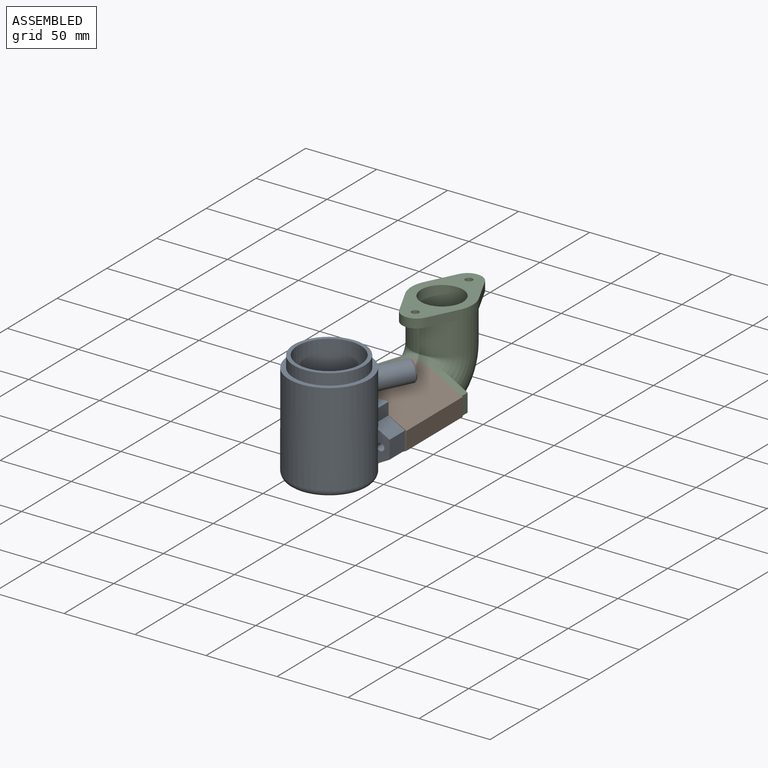
[diagram: assembled view]
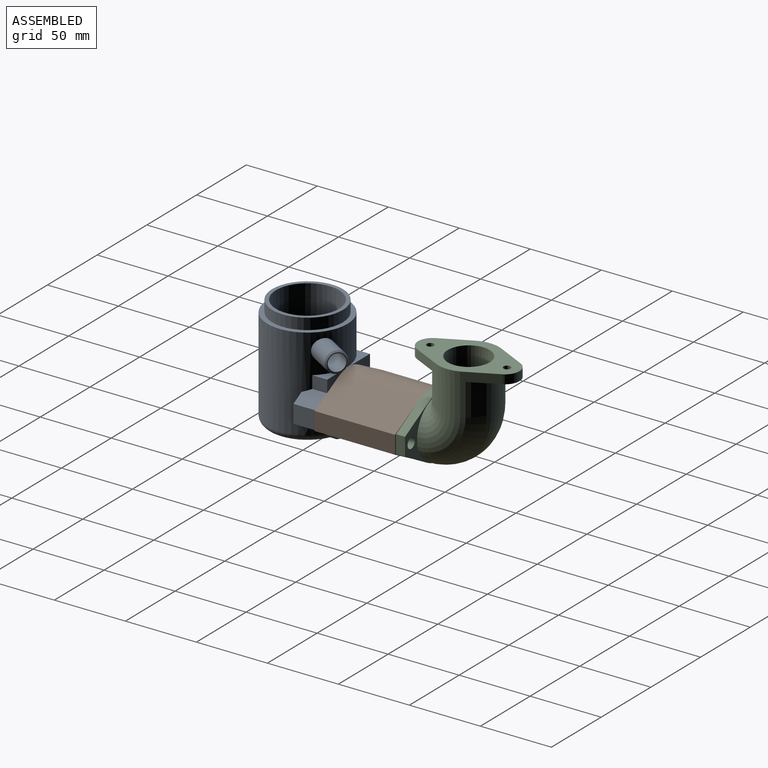
[diagram: assembled view, second angle]
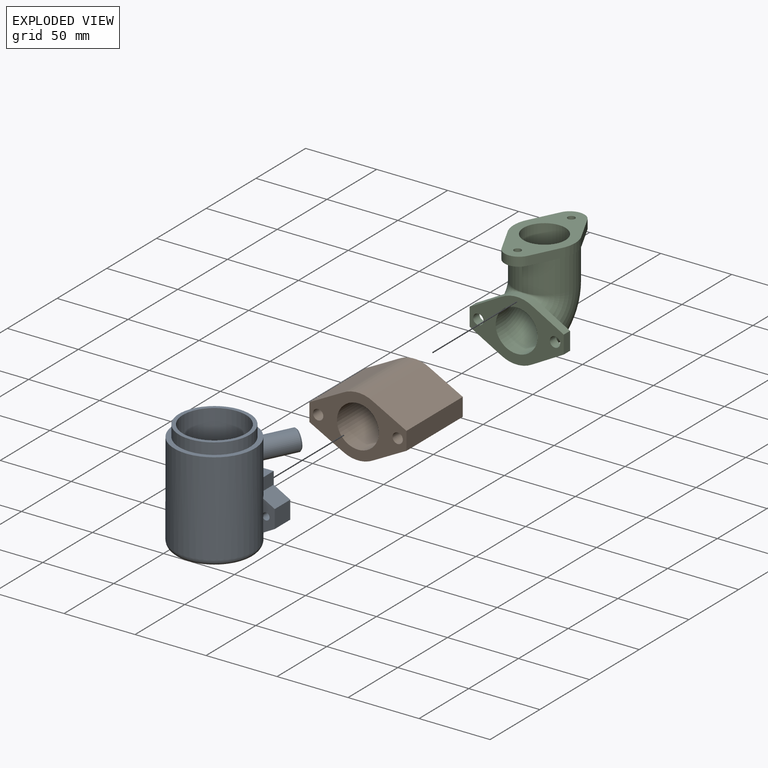
[diagram: exploded view]
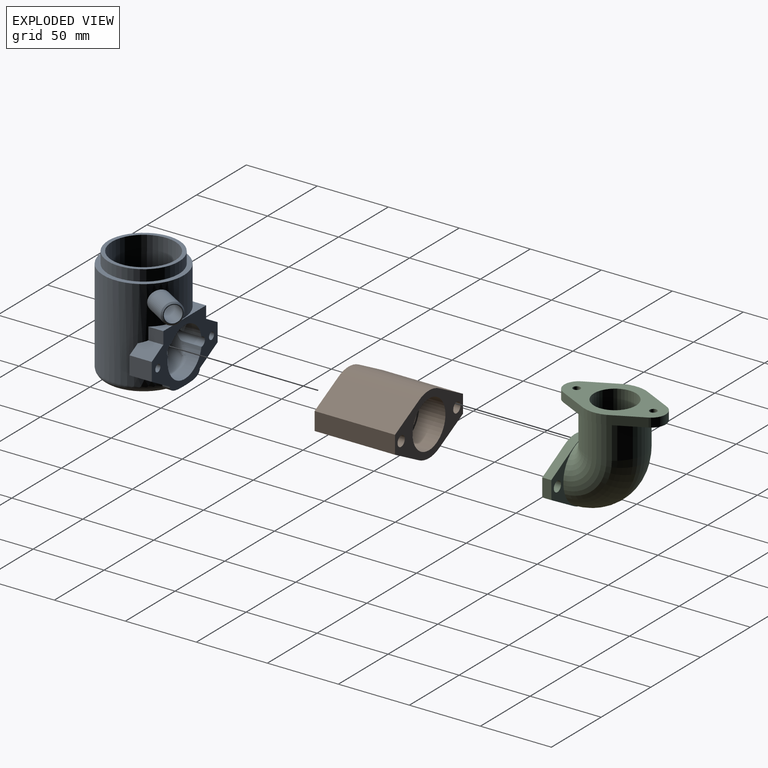
[diagram: exploded view, second angle]
ASSEMBLY  parts=3 mates=2
PART A: 49 faces, bbox 68.9x78.4x76.5 mm
  f0: cylinder r=28.28mm len=65mm, axis (0,1,0), area 9278mm2, adj f6,f7,f8,f9,f10,f11,f12,f13
  f1: plane 49.78x49.78mm, normal (0,1,0), area 394.8mm2, adj f2,f34
  f2: cylinder r=22.23mm len=68.07mm, axis (0,1,0), area 8019.6mm2, adj f1,f19,f22,f23,f41,f46,f47,f48
  f3: plane 46.4x46.4mm, normal (0,-1,0), area 1691.3mm2, adj f28
  f4: plane 15.62x12.7mm, normal (1,0,0), area 198.4mm2, adj f7,f11,f20,f33
  f5: plane 15.62x12.7mm, normal (-1,0,0), area 198.4mm2, adj f6,f12,f21,f33
  f6: plane 17.94x15.62mm, normal (-0.48,-0.88,0), area 251.3mm2, adj f0,f5,f21,f30,f33
  f7: plane 17.94x15.62mm, normal (0.48,-0.88,0), area 251.3mm2, adj f0,f4,f20,f32,f33
  f8: plane 42.99x10.53mm, normal (0,1,0), area 157.4mm2, adj f0,f9,f10,f33
  f9: plane 10.53x8.7mm, normal (-1,0,0), area 91.7mm2, adj f0,f8,f12,f33
  f10: plane 10.53x8.7mm, normal (1,0,0), area 91.7mm2, adj f0,f8,f11,f33
  f11: plane 15.62x11.67mm, normal (0.48,0.88,0), area 197.3mm2, adj f0,f4,f10,f20,f33
  f12: plane 15.62x11.67mm, normal (-0.48,0.88,0), area 197.3mm2, adj f0,f5,f9,f21,f33
  f13: cylinder r=2.54mm len=15.62mm, axis (0,0,-1), area 249.3mm2, adj f0,f20,f33
  f14: cylinder r=2.54mm len=15.62mm, axis (0,0,-1), area 247.3mm2, adj f0,f21,f33
  f15: cylinder r=17.14mm len=30.6mm, axis (0,0,-1), area 210.4mm2, adj f22,f23,f33,f48
  f16: cylinder r=17.14mm len=34mm, axis (0,0,-1), area 568mm2, adj f17,f22,f23,f33,f41,f42,f43,f44
  f17: plane 9.72x0.54mm, normal (0,0,1), area 3.1mm2, adj f16,f18,f43,f44
  f18: plane 34.29x33.59mm, normal (0,1,0), area 339.6mm2, adj f17,f19,f27,f43,f44
  f19: torus R=17.14mm, axis (0,1,0), area 851.9mm2, adj f2,f18,f42,f45
  f20: plane 21.75x8.2mm, normal (0,0,-1), area 122mm2, adj f0,f4,f7,f11,f13
  f21: plane 21.75x8.2mm, normal (0,0,-1), area 122mm2, adj f0,f5,f6,f12,f14
  f22: cylinder r=3.13mm len=19.81mm, axis (0,0,1), area 180.9mm2, adj f2,f15,f16,f33,f46,f48
  f23: cylinder r=4.14mm len=15.26mm, axis (0,0,1), area 117.2mm2, adj f2,f15,f16,f33,f41,f48
  f24: cylinder r=8.26mm len=16.51mm, axis (0,-1,0), area 352mm2, adj f27,f29
  f25: plane 6.35x6.35mm, normal (0,1,0), area 31.7mm2, adj f26
  f26: cone r=3.17mm half-angle=45deg, axis (0,-1,0), area 158.7mm2, adj f25,f29
  f27: torus R=13.33mm, axis (0,1,0), area 506.4mm2, adj f18,f24
  f28: torus R=23.2mm, axis (0,1,0), area 1149mm2, adj f0,f3,f31
  f29: torus R=3.17mm, axis (0,1,0), area 194.2mm2, adj f24,f26
  f30: plane 5.08x0.1mm, normal (-1,0,0), area 0.5mm2, adj f0,f6,f31,f33
  f31: extruded ~30.44x5.08mm, area 176.3mm2, adj f28,f30,f32,f33
  f32: plane 5.08x0.1mm, normal (1,0,0), area 0.5mm2, adj f0,f7,f31,f33
  f33: plane 66.7x43.26mm, normal (0,0,1), area 1191.9mm2, adj f4,f5,f6,f7,f8,f9,f10,f11
  f34: cylinder r=24.89mm len=49.78mm, axis (0,1,0), area 1235.5mm2, adj f1,f35
  f35: plane 56.56x56.56mm, normal (0,1,0), area 566.4mm2, adj f0,f34
  f36: cylinder r=5.75mm len=26.13mm, axis (0.58,-0.08,-0.81), area 863mm2, adj f38,f39
  f37: cylinder r=7.3mm len=27.43mm, axis (0.58,-0.08,-0.81), area 1068.1mm2, adj f0,f40
  f38: plane 12.54x10.27mm, normal (-0.58,0.08,0.81), area 20.4mm2, adj f36,f40
  f39: cylinder r=5.74mm len=11.72mm, axis (-0.58,0.08,0.81), area 52.6mm2, adj f36,f47
  f40: cone r=6.29mm half-angle=45deg, axis (0.58,-0.08,-0.81), area 61.3mm2, adj f37,f38
  f41: bspline ~19.09x7.21mm, area 57.1mm2, adj f2,f16,f23,f42
  f42: bspline ~12.34x8.85mm, area 45.6mm2, adj f16,f19,f41,f43
  f43: cylinder r=5.08mm len=2.13mm, axis (0,0,-1), area 2.4mm2, adj f16,f17,f18,f42
  f44: cylinder r=5.08mm len=2.13mm, axis (0,0,-1), area 2.4mm2, adj f16,f17,f18,f45
  f45: bspline ~12.34x8.85mm, area 45.6mm2, adj f16,f19,f44,f46
  f46: bspline ~11.25x7.15mm, area 32mm2, adj f2,f16,f22,f45
  f47: bspline ~21.75x14.52mm, area 316.5mm2, adj f2,f39
  f48: bspline ~35.42x21.1mm, area 292.4mm2, adj f2,f15,f22,f23
PART B: 15 faces, bbox 68.4x56.6x43.2 mm
  f0: cylinder r=14.77mm len=38.1mm, axis (0,1,0), area 3535.8mm2, adj f11,f14
  f1: plane 56.64x23.38mm, normal (0.47,0,0.88), area 1497.7mm2, adj f2,f9,f11,f12
  f2: cylinder r=21.59mm len=56.64mm, axis (0,1,0), area 1280.6mm2, adj f1,f3,f11,f12
  f3: plane 56.64x23.38mm, normal (-0.47,0,0.88), area 1497.7mm2, adj f2,f4,f11,f12
  f4: plane 56.64x12.7mm, normal (-1,0,0), area 719.4mm2, adj f3,f5,f11,f12
  f5: plane 56.64x23.38mm, normal (-0.47,0,-0.88), area 1497.7mm2, adj f4,f6,f11,f12
  f6: cylinder r=21.59mm len=56.64mm, axis (0,1,0), area 1280.6mm2, adj f5,f7,f11,f12
  f7: plane 56.64x23.38mm, normal (0.47,0,-0.88), area 1497.7mm2, adj f6,f9,f11,f12
  f8: cylinder r=3.63mm len=56.64mm, axis (0,1,0), area 1292.7mm2, adj f11,f12
  f9: plane 56.64x12.7mm, normal (1,0,0), area 719.4mm2, adj f1,f7,f11,f12
  f10: cylinder r=3.63mm len=56.64mm, axis (0,1,0), area 1292.7mm2, adj f11,f12
  f11: plane 68.35x43.18mm, normal (0,-1,0), area 1294.8mm2, adj f0,f1,f2,f3,f4,f5,f6,f7
  f12: plane 68.35x43.18mm, normal (0,1,0), area 1123.8mm2, adj f1,f2,f3,f4,f5,f6,f7,f8
  f13: cylinder r=16.51mm len=33.02mm, axis (0,1,0), area 1923.5mm2, adj f12,f14
  f14: plane 33.02x33.02mm, normal (0,1,0), area 171mm2, adj f0,f13
PART C: 33 faces, bbox 66.3x71.4x75.5 mm
  f0: cylinder r=21.59mm len=21.59mm, axis (0,1,0), area 143.6mm2, adj f1,f8,f11,f12
  f1: plane 22.36x12.35mm, normal (-0.48,0,0.88), area 162.2mm2, adj f0,f2,f11,f12
  f2: plane 12.7x6.35mm, normal (-1,0,0), area 80.6mm2, adj f1,f3,f11,f12
  f3: plane 22.36x12.35mm, normal (-0.48,0,-0.88), area 162.2mm2, adj f2,f4,f11,f12
  f4: cylinder r=21.59mm len=21.59mm, axis (0,1,0), area 143.6mm2, adj f3,f5,f11,f12
  f5: plane 22.36x12.35mm, normal (0.48,0,-0.88), area 162.2mm2, adj f4,f6,f11,f12
  f6: plane 12.7x6.35mm, normal (1,0,0), area 80.6mm2, adj f5,f8,f11,f12
  f7: cylinder r=14.77mm len=29.54mm, axis (0,1,0), area 589.3mm2, adj f11,f13
  f8: plane 22.36x12.35mm, normal (0.48,0,0.88), area 162.2mm2, adj f0,f6,f11,f12
  f9: cylinder r=3.63mm len=7.26mm, axis (0,1,0), area 144.9mm2, adj f11,f12
  f10: cylinder r=3.63mm len=7.26mm, axis (0,1,0), area 144.9mm2, adj f11,f12
  f11: plane 66.32x43.18mm, normal (0,-1,0), area 1243.9mm2, adj f0,f1,f2,f3,f4,f5,f6,f7
  f12: plane 66.32x43.18mm, normal (0,1,0), area 527.9mm2, adj f0,f1,f2,f3,f4,f5,f6,f8
  f13: torus R=21.64mm, axis (1,0,0), area 3154mm2, adj f7,f15
  f14: torus R=21.64mm, axis (1,0,0), area 4509.9mm2, adj f12,f16
  f15: cylinder r=14.77mm len=29.54mm, axis (0,0,-1), area 2710.8mm2, adj f13,f27
  f16: cylinder r=21.12mm len=42.24mm, axis (0,0,-1), area 3033.6mm2, adj f14,f28
  f17: plane 19.26x9.55mm, normal (0.9,-0.44,0), area 136.5mm2, adj f18,f27,f28,f29
  f18: cylinder r=21.59mm len=21.59mm, axis (0,0,-1), area 143.6mm2, adj f17,f19,f27,f28
  f19: plane 19.26x9.55mm, normal (0.9,0.44,0), area 136.5mm2, adj f18,f27,f28,f30
  f20: plane 6.35x0.09mm, normal (0,1,0), area 0.6mm2, adj f27,f28,f30,f31
  f21: plane 19.26x9.55mm, normal (-0.9,0.44,0), area 136.5mm2, adj f22,f27,f28,f31
  f22: cylinder r=21.59mm len=21.59mm, axis (0,0,-1), area 143.6mm2, adj f21,f23,f27,f28
  f23: plane 19.26x9.55mm, normal (-0.9,-0.44,0), area 136.5mm2, adj f22,f27,f28,f32
  f24: cylinder r=2.54mm len=6.35mm, axis (0,0,-1), area 101.3mm2, adj f27,f28
  f25: plane 6.35x0.09mm, normal (0,-1,0), area 0.6mm2, adj f27,f28,f29,f32
  f26: cylinder r=2.54mm len=6.35mm, axis (0,0,-1), area 101.3mm2, adj f27,f28
  f27: plane 71.4x43.18mm, normal (0,0,1), area 1386.6mm2, adj f15,f17,f18,f19,f20,f21,f22,f23
  f28: plane 71.4x43.18mm, normal (0,0,-1), area 670.7mm2, adj f16,f17,f18,f19,f20,f21,f22,f23
  f29: cylinder r=10.16mm len=9.1mm, axis (0,0,1), area 71.6mm2, adj f17,f25,f27,f28
  f30: cylinder r=10.16mm len=9.1mm, axis (0,0,-1), area 71.6mm2, adj f19,f20,f27,f28
  f31: cylinder r=10.16mm len=9.1mm, axis (0,0,1), area 71.6mm2, adj f20,f21,f27,f28
  f32: cylinder r=10.16mm len=9.1mm, axis (0,0,1), area 71.6mm2, adj f23,f25,f27,f28
PLACE A rot(axis=(0,-0.71,-0.71),180deg) t=(-27.24,-62.16,-17.65)mm
PLACE B t=(-27.24,-30.29,-17.65)mm
PLACE C t=(-27.24,-23.94,-17.65)mm
MATE planar C.f7 <-> B.f13  axis (0,-1,0) through (-27.24,-30.29,-17.65)mm
MATE planar B.f0 <-> A.f15  axis (0,-1,0) through (-27.24,-86.93,-17.65)mm
